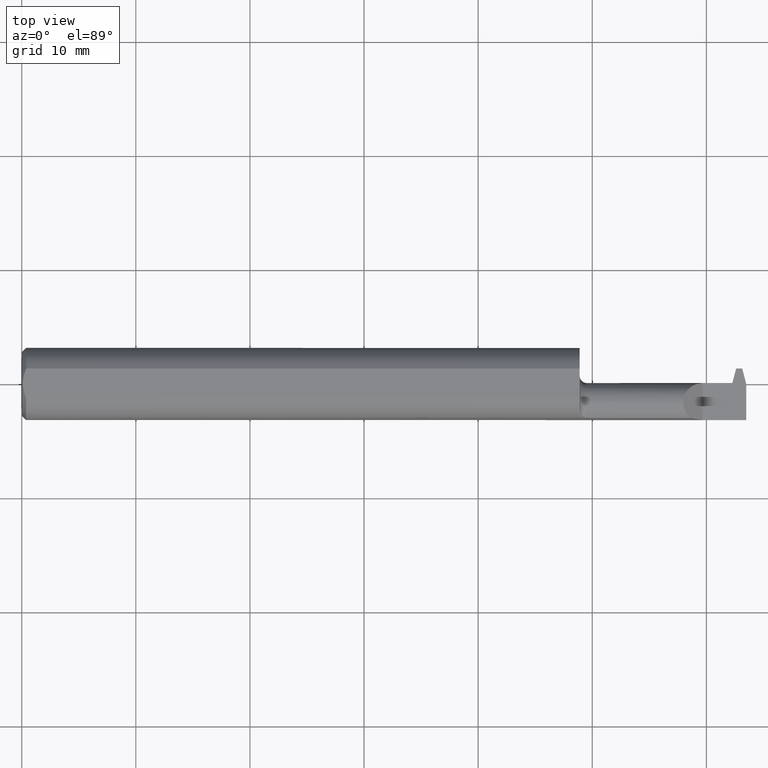
[diagram: clean part render]
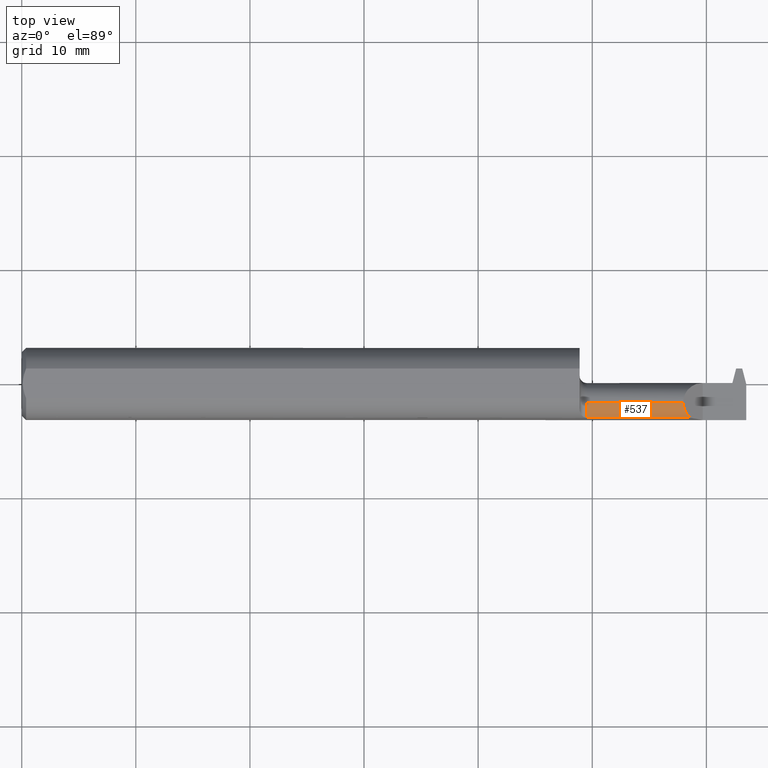
[diagram: same view with one face highlighted and labeled with its STEP entity id]
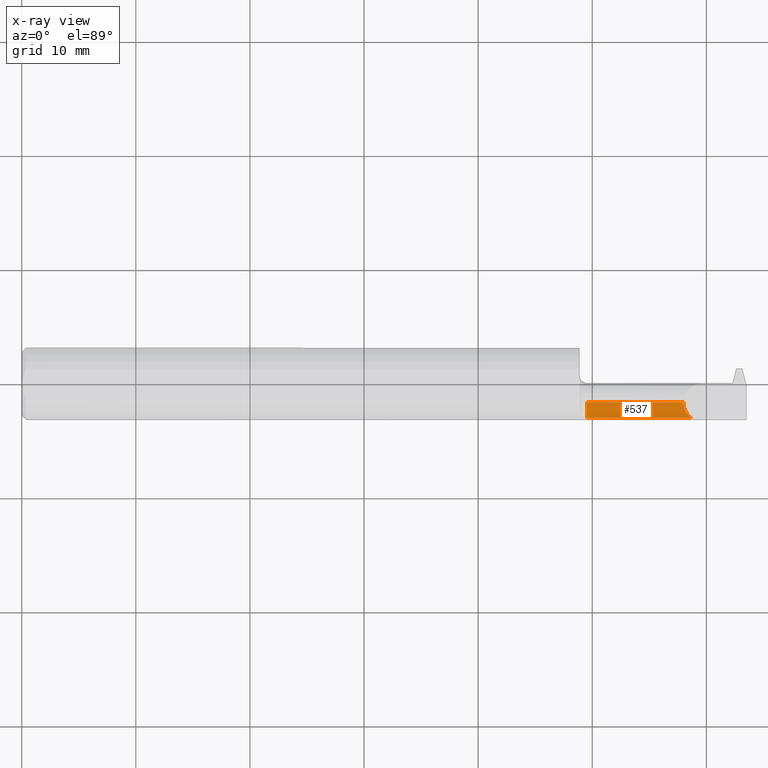
[diagram: x-ray of the same camera — body ghosted, the highlighted face saturated]
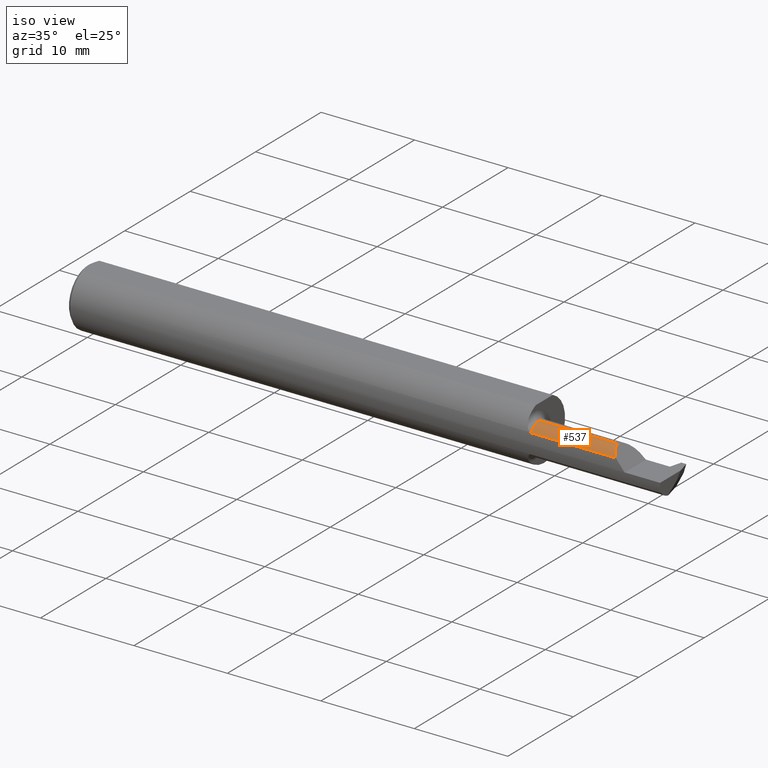
[diagram: same view with one face highlighted and labeled with its STEP entity id]
A machine part, top view. The second image highlights one B-rep face of the part: STEP entity #537.
The next image is the same camera in x-ray: the body ghosted, the highlighted face saturated — about 0% of this face is hidden behind the body in this view.
A second angle (iso view) of the same face is appended — the face is thin or edge-on in the first view.
In plain terms, the highlighted cylindrical surface (edge-blend (fillet) strip) has radius 1.7145 mm, axis along (-1, -0, -0).
Its self-contained STEP definition (entity closure, byte-faithful):
#55 = CYLINDRICAL_SURFACE ( 'NONE', #683, 0.06750000000000001832 ) ;
#184 = VECTOR ( 'NONE', #677, 39.37007874015748143 ) ;
#292 = CARTESIAN_POINT ( 'NONE',  ( 1.949999999999999956, -0.06435000000000003217, 0.000000000000000000 ) ) ;
#302 = CARTESIAN_POINT ( 'NONE',  ( 2.282599999999999518, -0.08571428085691458476, 0.06750000000000000444 ) ) ;
#307 = CARTESIAN_POINT ( 'NONE',  ( 1.925000000000000044, -0.06435000000000003217, 0.000000000000000000 ) ) ;
#316 = VECTOR ( 'NONE', #512, 39.37007874015748143 ) ;
#319 = VERTEX_POINT ( 'NONE', #787 ) ;
#350 = VERTEX_POINT ( 'NONE', #559 ) ;
#376 = DIRECTION ( 'NONE',  ( 1.000000000000000000, 0.000000000000000000, 0.000000000000000000 ) ) ;
#380 = CARTESIAN_POINT ( 'NONE',  ( 2.187500000000000000, -0.1178880730380729852, 0.04110869415792685333 ) ) ;
#384 = CARTESIAN_POINT ( 'NONE',  ( 2.308991305842072794, -0.1178880730380730268, 0.04110869415792675619 ) ) ;
#464 = AXIS2_PLACEMENT_3D ( 'NONE', #292, #376, #590 ) ;
#512 = DIRECTION ( 'NONE',  ( -1.000000000000000000, -0.000000000000000000, -0.000000000000000000 ) ) ;
#520 = EDGE_CURVE ( 'NONE', #319, #350, #976, .T. ) ;
#521 = DIRECTION ( 'NONE',  ( -1.000000000000000000, -0.000000000000000000, -0.000000000000000000 ) ) ;
#525 = EDGE_CURVE ( 'NONE', #695, #319, #898, .T. ) ;
#537 = ADVANCED_FACE ( 'NONE', ( #820 ), #55, .T. ) ;
#551 = ORIENTED_EDGE ( 'NONE', *, *, #906, .T. ) ;
#559 = CARTESIAN_POINT ( 'NONE',  ( 1.949999999999999956, -0.1178880730380729852, 0.04110869415792685333 ) ) ;
#571 = ORIENTED_EDGE ( 'NONE', *, *, #824, .F. ) ;
#590 = DIRECTION ( 'NONE',  ( 0.000000000000000000, 0.000000000000000000, -1.000000000000000000 ) ) ;
#627 = CARTESIAN_POINT ( 'NONE',  ( 2.282599999999999962, -0.06435000000000003217, 0.06750000000000001832 ) ) ;
#660 = ORIENTED_EDGE ( 'NONE', *, *, #520, .T. ) ;
#664 = ORIENTED_EDGE ( 'NONE', *, *, #525, .T. ) ;
#677 = DIRECTION ( 'NONE',  ( 1.000000000000000000, 0.000000000000000000, 0.000000000000000000 ) ) ;
#683 = AXIS2_PLACEMENT_3D ( 'NONE', #307, #521, #828 ) ;
#695 = VERTEX_POINT ( 'NONE', #627 ) ;
#702 = VERTEX_POINT ( 'NONE', #384 ) ;
#709 =( BOUNDED_CURVE ( )  B_SPLINE_CURVE ( 3, ( #818, #302, #823, #746 ),
 .UNSPECIFIED., .F., .T. ) 
 B_SPLINE_CURVE_WITH_KNOTS ( ( 4, 4 ),
 ( 0.000000000000000000, 0.9159748057925681808 ),
 .UNSPECIFIED. ) 
 CURVE ( )  GEOMETRIC_REPRESENTATION_ITEM ( )  RATIONAL_B_SPLINE_CURVE ( ( 1.000000000000000000, 0.9312961138972046804, 0.9312961138972046804, 1.000000000000000000 ) ) 
 REPRESENTATION_ITEM ( '' )  );
#746 = CARTESIAN_POINT ( 'NONE',  ( 2.308991305842072794, -0.1178880730380730268, 0.04110869415792675619 ) ) ;
#755 = CARTESIAN_POINT ( 'NONE',  ( 1.925000000000000044, -0.06435000000000003217, 0.06750000000000001832 ) ) ;
#758 = LINE ( 'NONE', #380, #184 ) ;
#787 = CARTESIAN_POINT ( 'NONE',  ( 1.949999999999999956, -0.06435000000000003217, 0.06750000000000001832 ) ) ;
#818 = CARTESIAN_POINT ( 'NONE',  ( 2.282599999999999962, -0.06435000000000003217, 0.06750000000000001832 ) ) ;
#820 = FACE_OUTER_BOUND ( 'NONE', #914, .T. ) ;
#823 = CARTESIAN_POINT ( 'NONE',  ( 2.292046084672837658, -0.1048768480358367172, 0.05805391532716226016 ) ) ;
#824 = EDGE_CURVE ( 'NONE', #695, #702, #709, .T. ) ;
#828 = DIRECTION ( 'NONE',  ( 0.000000000000000000, 0.000000000000000000, 1.000000000000000000 ) ) ;
#898 = LINE ( 'NONE', #755, #316 ) ;
#906 = EDGE_CURVE ( 'NONE', #350, #702, #758, .T. ) ;
#914 = EDGE_LOOP ( 'NONE', ( #571, #664, #660, #551 ) ) ;
#976 = CIRCLE ( 'NONE', #464, 0.06750000000000001832 ) ;